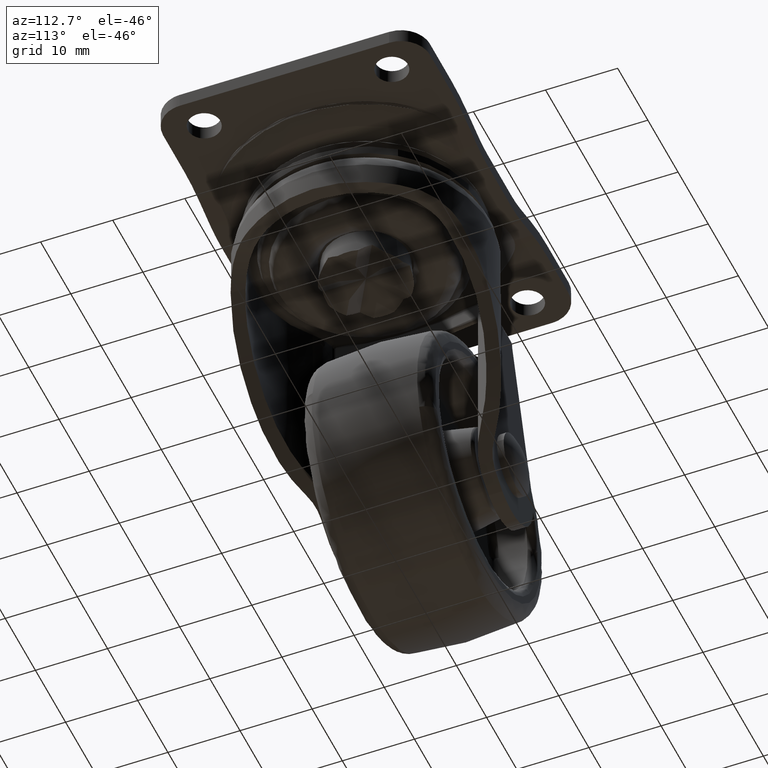
[diagram: clean part render]
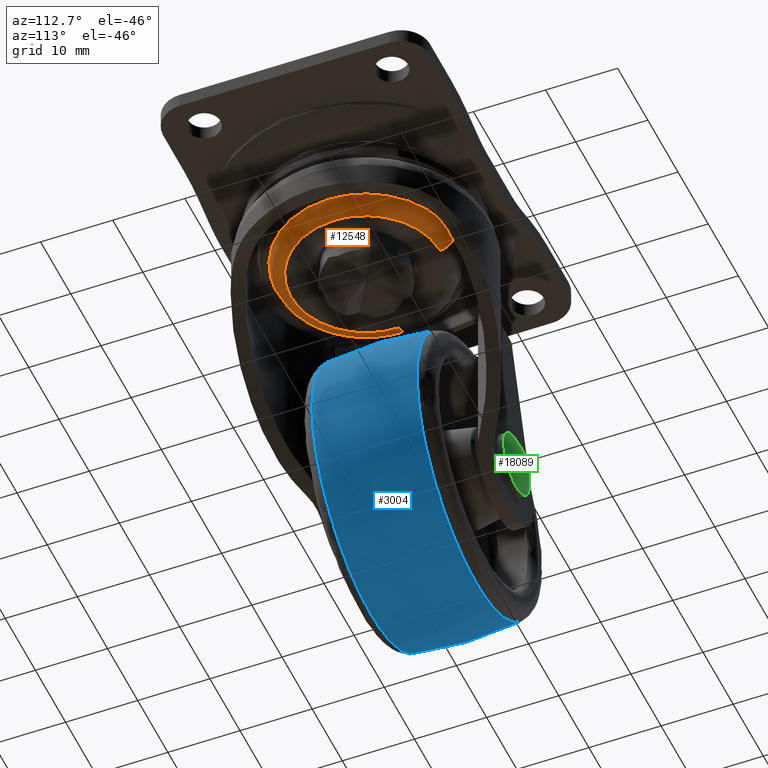
[diagram: same view with three faces highlighted in distinct colors, each labeled with its STEP entity id]
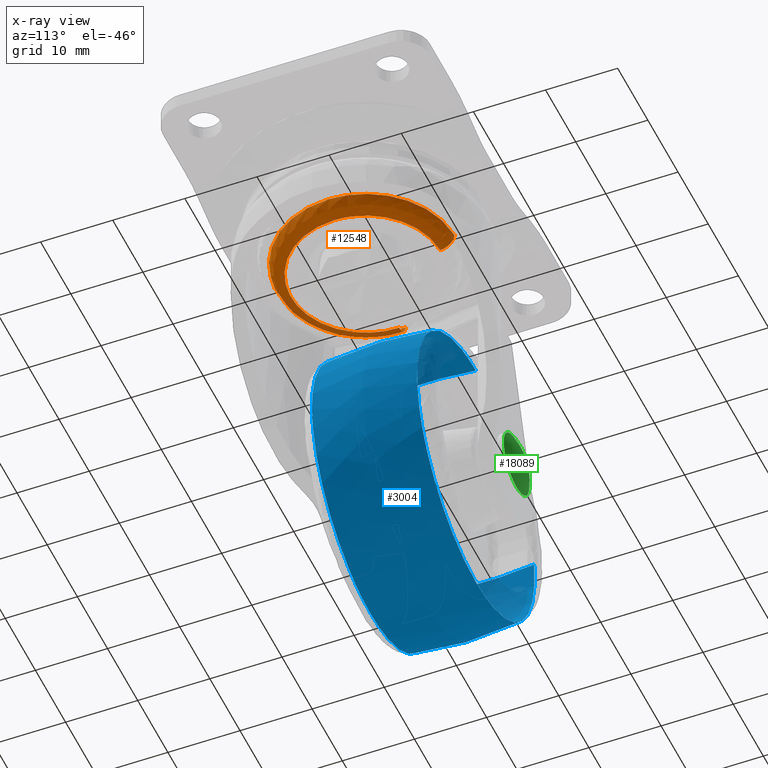
[diagram: x-ray of the same camera — body ghosted, the three highlighted faces saturated]
A machine part, auxiliary view with three faces highlighted in distinct colors.
The next image is the same camera in x-ray (body ghosted, the three faces saturated) — at least one of them is partly hidden behind the body in this view.
Their STEP definitions:

[orange] entity #12548 — the highlighted face is a freeform B-spline surface patch.
#12378=CARTESIAN_POINT('',(0.311850443646157,12.405522240732195,-10.944864675585006));
#12379=CARTESIAN_POINT('',(12.717372684378343,12.093671797086039,-10.944864675585006));
#12380=CARTESIAN_POINT('',(12.405522240732186,-0.311850443646149,-10.944864675585006));
#12381=CARTESIAN_POINT('',(12.093671797086026,-12.717372684378338,-10.944864675585006));
#12382=CARTESIAN_POINT('',(-0.311850443646158,-12.405522240732173,-10.944864675585006));
#12383=CARTESIAN_POINT('',(-12.717372684378343,-12.093671797086019,-10.944864675585006));
#12384=CARTESIAN_POINT('',(-12.405522240732186,0.311850443646164,-10.944864675585006));
#12385=CARTESIAN_POINT('',(0.313950627715456,12.489068314538290,-13.167879551239734));
#12386=CARTESIAN_POINT('',(12.803018942253740,12.175117686822833,-13.167879551239738));
#12387=CARTESIAN_POINT('',(12.489068314538283,-0.313950627715448,-13.167879551239734));
#12388=CARTESIAN_POINT('',(12.175117686822823,-12.803018942253731,-13.167879551239738));
#12389=CARTESIAN_POINT('',(-0.313950627715457,-12.489068314538274,-13.167879551239734));
#12390=CARTESIAN_POINT('',(-12.803018942253740,-12.175117686822817,-13.167879551239738));
#12391=CARTESIAN_POINT('',(-12.489068314538283,0.313950627715464,-13.167879551239734));
#12392=CARTESIAN_POINT('',(0.258178255972548,10.270423409033265,-13.015289510835558));
#12393=CARTESIAN_POINT('',(10.528601665005811,10.012245153060721,-13.015289510835558));
#12394=CARTESIAN_POINT('',(10.270423409033260,-0.258178255972541,-13.015289510835558));
#12395=CARTESIAN_POINT('',(10.012245153060713,-10.528601665005803,-13.015289510835558));
#12396=CARTESIAN_POINT('',(-0.258178255972549,-10.270423409033253,-13.015289510835558));
#12397=CARTESIAN_POINT('',(-10.528601665005811,-10.012245153060706,-13.015289510835558));
#12398=CARTESIAN_POINT('',(-10.270423409033260,0.258178255972556,-13.015289510835558));
#12406=(BOUNDED_SURFACE()B_SPLINE_SURFACE(2,2,((#12378,#12385,#12392),(#12379,#12386,#12393),(#12380,#12387,#12394),(#12381,#12388,#12395),(#12382,#12389,#12396),(#12383,#12390,#12397),(#12384,#12391,#12398)),.UNSPECIFIED.,.F.,.F.,.U.)B_SPLINE_SURFACE_WITH_KNOTS((3,2,2,3),(3,3),(0.0,20.560635510765820,41.121271021531633,61.681906532297447),(0.0,3.565430181881246),.UNSPECIFIED.)GEOMETRIC_REPRESENTATION_ITEM()RATIONAL_B_SPLINE_SURFACE(((0.913808013108991,0.610044476506142,0.911112179093814),(0.646159842771973,0.431366586162891,0.644253600258888),(0.913808013108991,0.610044476506142,0.911112179093814),(0.646159842771973,0.431366586162891,0.644253600258888),(0.913808013108991,0.610044476506142,0.911112179093814),(0.646159842771973,0.431366586162891,0.644253600258888),(0.913808013108991,0.610044476506142,0.911112179093814)))REPRESENTATION_ITEM('')SURFACE());
#12407=CARTESIAN_POINT('',(0.311861971514638,12.405980820569450,-11.081737371096560));
#12408=VERTEX_POINT('',#12407);
#12409=CARTESIAN_POINT('',(12.409900000000000,7.105427E-015,-11.081737370593000));
#12410=VERTEX_POINT('',#12409);
#12411=CARTESIAN_POINT('',(0.311861971514638,12.405980820569447,-11.081737371096558));
#12412=CARTESIAN_POINT('',(12.409900000000000,12.101859925472256,-11.081737370592998));
#12413=CARTESIAN_POINT('',(12.409900000000000,7.105427E-015,-11.081737370593000));
#12421=(BOUNDED_CURVE()B_SPLINE_CURVE(2,(#12411,#12412,#12413),.UNSPECIFIED.,.F.,.U.)B_SPLINE_CURVE_WITH_KNOTS((3,3),(0.754420108232245,1.0),.UNSPECIFIED.)CURVE()GEOMETRIC_REPRESENTATION_ITEM()RATIONAL_B_SPLINE_CURVE((0.989826157676937,0.712285260097132,1.0))REPRESENTATION_ITEM(''));
#12422=EDGE_CURVE('',#12408,#12410,#12421,.T.);
#12423=ORIENTED_EDGE('',*,*,#12422,.T.);
#12424=CARTESIAN_POINT('',(-4.384442078075715,-11.609577330963591,-11.081737370593000));
#12425=VERTEX_POINT('',#12424);
#12426=CARTESIAN_POINT('',(12.409900000000000,7.105427E-015,-11.081737370593000));
#12427=CARTESIAN_POINT('',(12.409900000000002,-12.409899999999993,-11.081737370592998));
#12428=CARTESIAN_POINT('',(0.0,-12.409899999999990,-11.081737370593000));
#12429=CARTESIAN_POINT('',(-2.265265267244879,-12.409899999999999,-11.081737370592995));
#12430=CARTESIAN_POINT('',(-4.384442078075714,-11.609577330963591,-11.081737370593002));
#12438=(BOUNDED_CURVE()B_SPLINE_CURVE(2,(#12426,#12427,#12428,#12429,#12430),.UNSPECIFIED.,.F.,.U.)B_SPLINE_CURVE_WITH_KNOTS((3,2,3),(0.0,0.250000000000000,0.310000000004770),.UNSPECIFIED.)CURVE()GEOMETRIC_REPRESENTATION_ITEM()RATIONAL_B_SPLINE_CURVE((1.0,0.707106781186548,1.0,0.929705627479183,0.893152553771041))REPRESENTATION_ITEM(''));
#12439=EDGE_CURVE('',#12410,#12425,#12438,.T.);
#12440=ORIENTED_EDGE('',*,*,#12439,.T.);
#12441=CARTESIAN_POINT('',(-12.409900000197080,7.208076E-015,-11.081737370593000));
#12442=VERTEX_POINT('',#12441);
#12443=CARTESIAN_POINT('',(-4.384442078075714,-11.609577330963591,-11.081737370593002));
#12444=CARTESIAN_POINT('',(-12.409900000000000,-8.578704244715675,-11.081737370592998));
#12445=CARTESIAN_POINT('',(-12.409900000197080,7.208076E-015,-11.081737370593000));
#12453=(BOUNDED_CURVE()B_SPLINE_CURVE(2,(#12443,#12444,#12445),.UNSPECIFIED.,.F.,.U.)B_SPLINE_CURVE_WITH_KNOTS((3,3),(0.310000000004770,0.500000000000000),.UNSPECIFIED.)CURVE()GEOMETRIC_REPRESENTATION_ITEM()RATIONAL_B_SPLINE_CURVE((0.893152553771041,0.777401153707365,1.0))REPRESENTATION_ITEM(''));
#12454=EDGE_CURVE('',#12425,#12442,#12453,.T.);
#12455=ORIENTED_EDGE('',*,*,#12454,.T.);
#12456=CARTESIAN_POINT('',(-12.405980820569170,0.311861971538966,-11.081737371085630));
#12457=VERTEX_POINT('',#12456);
#12458=CARTESIAN_POINT('',(-12.409900000197080,7.208076E-015,-11.081737370593000));
#12459=CARTESIAN_POINT('',(-12.409899999999997,0.155955612045021,-11.081737370593002));
#12460=CARTESIAN_POINT('',(-12.405980820569170,0.311861971538966,-11.081737371085627));
#12468=(BOUNDED_CURVE()B_SPLINE_CURVE(2,(#12458,#12459,#12460),.UNSPECIFIED.,.F.,.U.)B_SPLINE_CURVE_WITH_KNOTS((3,3),(0.500000000000000,0.504420108232930),.UNSPECIFIED.)CURVE()GEOMETRIC_REPRESENTATION_ITEM()RATIONAL_B_SPLINE_CURVE((1.0,0.994821521088613,0.989826157675389))REPRESENTATION_ITEM(''));
#12469=EDGE_CURVE('',#12442,#12457,#12468,.T.);
#12470=ORIENTED_EDGE('',*,*,#12469,.T.);
#12471=CARTESIAN_POINT('',(-10.407565247732730,0.261625732591921,-13.020000000000000));
#12472=VERTEX_POINT('',#12471);
#12473=CARTESIAN_POINT('',(-12.405980820569168,0.311861971538966,-11.081737371085625));
#12474=CARTESIAN_POINT('',(-12.346139578772986,0.310357680252773,-13.019999992456505));
#12475=CARTESIAN_POINT('',(-10.407565247732734,0.261625732591920,-13.020000000000005));
#12483=(BOUNDED_CURVE()B_SPLINE_CURVE(2,(#12473,#12474,#12475),.UNSPECIFIED.,.F.,.U.)B_SPLINE_CURVE_WITH_KNOTS((3,3),(-1.727085524206402,-0.280008953892666),.UNSPECIFIED.)CURVE()GEOMETRIC_REPRESENTATION_ITEM()RATIONAL_B_SPLINE_CURVE((0.887465651324974,0.636264459386005,0.885014576045190))REPRESENTATION_ITEM(''));
#12484=EDGE_CURVE('',#12457,#12472,#12483,.T.);
#12485=ORIENTED_EDGE('',*,*,#12484,.T.);
#12486=CARTESIAN_POINT('',(-10.410853102833180,7.105427E-015,-13.020000000000000));
#12487=VERTEX_POINT('',#12486);
#12488=CARTESIAN_POINT('',(-10.410853102833180,7.105427E-015,-13.020000000000000));
#12489=CARTESIAN_POINT('',(-10.410853102833176,0.130833525748690,-13.019999999999998));
#12490=CARTESIAN_POINT('',(-10.407565247732734,0.261625732591921,-13.020000000000003));
#12498=(BOUNDED_CURVE()B_SPLINE_CURVE(2,(#12488,#12489,#12490),.UNSPECIFIED.,.F.,.U.)B_SPLINE_CURVE_WITH_KNOTS((3,3),(0.500000000000000,0.504420108242749),.UNSPECIFIED.)CURVE()GEOMETRIC_REPRESENTATION_ITEM()RATIONAL_B_SPLINE_CURVE((1.0,0.994821521077110,0.989826157653196))REPRESENTATION_ITEM(''));
#12499=EDGE_CURVE('',#12487,#12472,#12498,.T.);
#12500=ORIENTED_EDGE('',*,*,#12499,.F.);
#12501=CARTESIAN_POINT('',(10.410853102833180,7.105427E-015,-13.020000000000000));
#12502=VERTEX_POINT('',#12501);
#12503=CARTESIAN_POINT('',(10.410853102833180,7.105427E-015,-13.020000000000000));
#12504=CARTESIAN_POINT('',(10.410853102833181,-10.410853102833174,-13.020000000000001));
#12505=CARTESIAN_POINT('',(0.0,-10.410853102833171,-13.020000000000000));
#12506=CARTESIAN_POINT('',(-10.410853102833181,-10.410853102833174,-13.020000000000001));
#12507=CARTESIAN_POINT('',(-10.410853102833180,7.105427E-015,-13.020000000000000));
#12515=(BOUNDED_CURVE()B_SPLINE_CURVE(2,(#12503,#12504,#12505,#12506,#12507),.UNSPECIFIED.,.F.,.U.)B_SPLINE_CURVE_WITH_KNOTS((3,2,3),(0.0,0.250000000000000,0.500000000000000),.UNSPECIFIED.)CURVE()GEOMETRIC_REPRESENTATION_ITEM()RATIONAL_B_SPLINE_CURVE((1.0,0.707106781186548,1.0,0.707106781186548,1.0))REPRESENTATION_ITEM(''));
#12516=EDGE_CURVE('',#12502,#12487,#12515,.T.);
#12517=ORIENTED_EDGE('',*,*,#12516,.F.);
#12518=CARTESIAN_POINT('',(0.261625732851050,10.407565249425391,-13.020000000000000));
#12519=VERTEX_POINT('',#12518);
#12520=CARTESIAN_POINT('',(0.261625732851049,10.407565249425389,-13.020000000000000));
#12521=CARTESIAN_POINT('',(10.410853102833181,10.152433616898458,-13.020000000000001));
#12522=CARTESIAN_POINT('',(10.410853102833180,7.105427E-015,-13.020000000000000));
#12530=(BOUNDED_CURVE()B_SPLINE_CURVE(2,(#12520,#12521,#12522),.UNSPECIFIED.,.F.,.U.)B_SPLINE_CURVE_WITH_KNOTS((3,3),(0.754420108250026,1.0),.UNSPECIFIED.)CURVE()GEOMETRIC_REPRESENTATION_ITEM()RATIONAL_B_SPLINE_CURVE((0.989826157636747,0.712285260117964,1.0))REPRESENTATION_ITEM(''));
#12531=EDGE_CURVE('',#12519,#12502,#12530,.T.);
#12532=ORIENTED_EDGE('',*,*,#12531,.F.);
#12533=CARTESIAN_POINT('',(0.311861971514638,12.405980820569452,-11.081737371096558));
#12534=CARTESIAN_POINT('',(0.310357680254789,12.346139578853474,-13.019999989162541));
#12535=CARTESIAN_POINT('',(0.261625732851049,10.407565249425391,-13.020000000000007));
#12543=(BOUNDED_CURVE()B_SPLINE_CURVE(2,(#12533,#12534,#12535),.UNSPECIFIED.,.F.,.U.)B_SPLINE_CURVE_WITH_KNOTS((3,3),(-1.727085524195016,-0.280008955655793),.UNSPECIFIED.)CURVE()GEOMETRIC_REPRESENTATION_ITEM()RATIONAL_B_SPLINE_CURVE((0.887465651321021,0.636264459694027,0.885014575439033))REPRESENTATION_ITEM(''));
#12544=EDGE_CURVE('',#12408,#12519,#12543,.T.);
#12545=ORIENTED_EDGE('',*,*,#12544,.F.);
#12546=EDGE_LOOP('',(#12423,#12440,#12455,#12470,#12485,#12500,#12517,#12532,#12545));
#12547=FACE_OUTER_BOUND('',#12546,.T.);
#12548=ADVANCED_FACE('',(#12547),#12406,.T.);

[blue] entity #3004 — the highlighted face is a freeform B-spline surface patch.
#1916=CARTESIAN_POINT('',(-19.0,7.291651991214275,-15.534724209274620));
#1917=VERTEX_POINT('',#1916);
#1931=CARTESIAN_POINT('',(-0.221796312252091,7.291661334391593,-40.126895138485132));
#1932=VERTEX_POINT('',#1931);
#1933=CARTESIAN_POINT('',(-0.221796312252091,7.291661334391593,-40.126895138485132));
#1934=CARTESIAN_POINT('',(0.465458627432351,7.291660312590998,-37.609604089531537));
#1935=CARTESIAN_POINT('',(0.465458627432351,7.291659328940423,-35.000183918353542));
#1936=CARTESIAN_POINT('',(0.465458627432351,7.291651991214275,-15.534724209274618));
#1937=CARTESIAN_POINT('',(-19.0,7.291651991214275,-15.534724209274620));
#1945=(BOUNDED_CURVE()B_SPLINE_CURVE(2,(#1933,#1934,#1935,#1936,#1937),.UNSPECIFIED.,.F.,.U.)B_SPLINE_CURVE_WITH_KNOTS((3,2,3),(0.205098066871547,0.250000000000000,0.500000000000000),.UNSPECIFIED.)CURVE()GEOMETRIC_REPRESENTATION_ITEM()RATIONAL_B_SPLINE_CURVE((0.913685074326374,0.947394113100244,1.0,0.707106781186548,1.0))REPRESENTATION_ITEM(''));
#1946=EDGE_CURVE('',#1932,#1917,#1945,.T.);
#2003=CARTESIAN_POINT('',(-19.0,7.291666666666570,-54.465643627432449));
#2004=VERTEX_POINT('',#2003);
#2005=CARTESIAN_POINT('',(-19.0,7.291666666666570,-54.465643627432449));
#2006=CARTESIAN_POINT('',(-4.136474489230366,7.291666666666570,-54.465643627432449));
#2007=CARTESIAN_POINT('',(-0.221796312252091,7.291661334391593,-40.126895138485132));
#2015=(BOUNDED_CURVE()B_SPLINE_CURVE(2,(#2005,#2006,#2007),.UNSPECIFIED.,.F.,.U.)B_SPLINE_CURVE_WITH_KNOTS((3,3),(0.0,0.205098066871547),.UNSPECIFIED.)CURVE()GEOMETRIC_REPRESENTATION_ITEM()RATIONAL_B_SPLINE_CURVE((1.0,0.759712668086304,0.913685074326374))REPRESENTATION_ITEM(''));
#2016=EDGE_CURVE('',#2004,#1932,#2015,.T.);
#2018=CARTESIAN_POINT('',(-38.335269852961197,7.291660169359547,-32.752640434118462));
#2019=VERTEX_POINT('',#2018);
#2020=CARTESIAN_POINT('',(-38.335269852961204,7.291660169359547,-32.752640434118462));
#2021=CARTESIAN_POINT('',(-38.465459554242692,7.291660336931813,-33.872642024027357));
#2022=CARTESIAN_POINT('',(-38.465459526689173,7.291660525111098,-35.000184895469900));
#2023=CARTESIAN_POINT('',(-38.465459051015891,7.291663773764609,-54.465643578194822));
#2024=CARTESIAN_POINT('',(-19.0,7.291666666666570,-54.465643627432449));
#2032=(BOUNDED_CURVE()B_SPLINE_CURVE(2,(#2020,#2021,#2022,#2023,#2024),.UNSPECIFIED.,.F.,.U.)B_SPLINE_CURVE_WITH_KNOTS((3,2,3),(0.730000172552690,0.750000000000000,1.0),.UNSPECIFIED.)CURVE()GEOMETRIC_REPRESENTATION_ITEM()RATIONAL_B_SPLINE_CURVE((0.956886457816466,0.976568744652975,1.0,0.707106781186548,1.0))REPRESENTATION_ITEM(''));
#2033=EDGE_CURVE('',#2019,#2004,#2032,.T.);
#2084=CARTESIAN_POINT('',(-11.878962424429821,-7.291666457953332,-53.116335348257962));
#2085=VERTEX_POINT('',#2084);
#2086=CARTESIAN_POINT('',(0.279789315277866,-7.291662504441980,-32.318055479335477));
#2087=VERTEX_POINT('',#2086);
#2088=CARTESIAN_POINT('',(-11.878962424429824,-7.291666457953331,-53.116335348257962));
#2089=CARTESIAN_POINT('',(0.465458627432400,-7.291665687121944,-48.264030253573154));
#2090=CARTESIAN_POINT('',(0.465458627432400,-7.291663592097937,-35.000184546781000));
#2091=CARTESIAN_POINT('',(0.465458627432400,-7.291663379261780,-33.652693570815046));
#2092=CARTESIAN_POINT('',(0.279789315277866,-7.291662504441980,-32.318055479335484));
#2100=(BOUNDED_CURVE()B_SPLINE_CURVE(2,(#2088,#2089,#2090,#2091,#2092),.UNSPECIFIED.,.F.,.U.)B_SPLINE_CURVE_WITH_KNOTS((3,2,3),(0.062116703510050,0.250000000000000,0.273792415459660),.UNSPECIFIED.)CURVE()GEOMETRIC_REPRESENTATION_ITEM()RATIONAL_B_SPLINE_CURVE((0.890615479700032,0.779881026119106,1.0,0.972125451410692,0.949556525547683))REPRESENTATION_ITEM(''));
#2101=EDGE_CURVE('',#2085,#2087,#2100,.T.);
#2186=CARTESIAN_POINT('',(-19.0,-7.291666666666580,-54.465643627432513));
#2187=VERTEX_POINT('',#2186);
#2188=CARTESIAN_POINT('',(-19.0,-7.291666666666580,-54.465643627432513));
#2189=CARTESIAN_POINT('',(-15.311646417906722,-7.291666666666580,-54.465643627432506));
#2190=CARTESIAN_POINT('',(-11.878962424429826,-7.291666457953332,-53.116335348257962));
#2198=(BOUNDED_CURVE()B_SPLINE_CURVE(2,(#2188,#2189,#2190),.UNSPECIFIED.,.F.,.U.)B_SPLINE_CURVE_WITH_KNOTS((3,3),(0.0,0.062116703510050),.UNSPECIFIED.)CURVE()GEOMETRIC_REPRESENTATION_ITEM()RATIONAL_B_SPLINE_CURVE((1.0,0.927225755067442,0.890615479700032))REPRESENTATION_ITEM(''));
#2199=EDGE_CURVE('',#2187,#2085,#2198,.T.);
#2248=CARTESIAN_POINT('',(-19.0,-7.291660517529294,-15.534725466129490));
#2249=VERTEX_POINT('',#2248);
#2250=CARTESIAN_POINT('',(0.279789315277866,-7.291662504441980,-32.318055479335484));
#2251=CARTESIAN_POINT('',(-2.055042288790572,-7.291660517529294,-15.534725466129496));
#2252=CARTESIAN_POINT('',(-19.0,-7.291660517529294,-15.534725466129490));
#2260=(BOUNDED_CURVE()B_SPLINE_CURVE(2,(#2250,#2251,#2252),.UNSPECIFIED.,.F.,.U.)B_SPLINE_CURVE_WITH_KNOTS((3,3),(0.273792415459660,0.500000000000000),.UNSPECIFIED.)CURVE()GEOMETRIC_REPRESENTATION_ITEM()RATIONAL_B_SPLINE_CURVE((0.949556525547683,0.734981329775855,1.0))REPRESENTATION_ITEM(''));
#2261=EDGE_CURVE('',#2087,#2249,#2260,.T.);
#2263=CARTESIAN_POINT('',(-38.335269497390577,-7.291662573129937,-32.752640444034640));
#2264=VERTEX_POINT('',#2263);
#2278=CARTESIAN_POINT('',(-38.335269497390584,-7.291662573129937,-32.752640444034640));
#2279=CARTESIAN_POINT('',(-38.465459211352766,-7.291662678706479,-33.872642048230013));
#2280=CARTESIAN_POINT('',(-38.465459193993162,-7.291662797266185,-35.000184934142702));
#2281=CARTESIAN_POINT('',(-38.465458894303673,-7.291664844034506,-54.465643596411219));
#2282=CARTESIAN_POINT('',(-19.0,-7.291666666666580,-54.465643627432513));
#2290=(BOUNDED_CURVE()B_SPLINE_CURVE(2,(#2278,#2279,#2280,#2281,#2282),.UNSPECIFIED.,.F.,.U.)B_SPLINE_CURVE_WITH_KNOTS((3,2,3),(0.730000172281514,0.750000000000000,1.0),.UNSPECIFIED.)CURVE()GEOMETRIC_REPRESENTATION_ITEM()RATIONAL_B_SPLINE_CURVE((0.956886457282724,0.976568744335273,1.0,0.707106781186548,1.0))REPRESENTATION_ITEM(''));
#2291=EDGE_CURVE('',#2264,#2187,#2290,.T.);
#2912=CARTESIAN_POINT('',(-38.222390168867321,-8.024815037819989,-32.765742250429952));
#2913=CARTESIAN_POINT('',(-38.866232832661680,-4.038584733023725,-32.690900903472517));
#2914=CARTESIAN_POINT('',(-38.866232832661694,9.184887E-016,-32.690900903472517));
#2915=CARTESIAN_POINT('',(-38.866232832661701,4.038583348912152,-32.690900903472524));
#2916=CARTESIAN_POINT('',(-38.222390607324719,8.024812323193249,-32.765742199462927));
#2917=CARTESIAN_POINT('',(-38.351822090058420,-8.024815037819986,-33.879214900342468));
#2918=CARTESIAN_POINT('',(-38.999999999999993,-4.038584733023726,-33.841668665526875));
#2919=CARTESIAN_POINT('',(-39.0,9.184887E-016,-33.841668665526861));
#2920=CARTESIAN_POINT('',(-39.000000000000007,4.038583348912152,-33.841668665526875));
#2921=CARTESIAN_POINT('',(-38.351822531468137,8.024812323193247,-33.879214874773446));
#2922=CARTESIAN_POINT('',(-38.351822090058427,-8.024815037819989,-35.000185000000108));
#2923=CARTESIAN_POINT('',(-39.000000000000007,-4.038584733023726,-35.000185000000101));
#2924=CARTESIAN_POINT('',(-39.000000000000007,9.184887E-016,-35.000185000000101));
#2925=CARTESIAN_POINT('',(-39.000000000000007,4.038583348912152,-35.000185000000108));
#2926=CARTESIAN_POINT('',(-38.351822531468144,8.024812323193245,-35.000185000000101));
#2927=CARTESIAN_POINT('',(-38.351822090058441,-8.024815037819987,-54.352007090058535));
#2928=CARTESIAN_POINT('',(-39.000000000000014,-4.038584733023726,-55.000185000000116));
#2929=CARTESIAN_POINT('',(-39.000000000000007,9.184887E-016,-55.000185000000101));
#2930=CARTESIAN_POINT('',(-39.0,4.038583348912152,-55.000185000000123));
#2931=CARTESIAN_POINT('',(-38.351822531468137,8.024812323193245,-54.352007531468246));
#2932=CARTESIAN_POINT('',(-19.0,-8.024815037819989,-54.352007090058535));
#2933=CARTESIAN_POINT('',(-19.000000000000004,-4.038584733023726,-55.000185000000101));
#2934=CARTESIAN_POINT('',(-19.0,9.184887E-016,-55.000185000000101));
#2935=CARTESIAN_POINT('',(-18.999999999999996,4.038583348912152,-55.000185000000108));
#2936=CARTESIAN_POINT('',(-18.999999999999996,8.024812323193245,-54.352007531468232));
#2937=CARTESIAN_POINT('',(0.351822090058424,-8.024815037819987,-54.352007090058535));
#2938=CARTESIAN_POINT('',(1.000000000000004,-4.038584733023726,-55.000185000000116));
#2939=CARTESIAN_POINT('',(1.000000000000004,9.184887E-016,-55.000185000000101));
#2940=CARTESIAN_POINT('',(1.000000000000004,4.038583348912152,-55.000185000000123));
#2941=CARTESIAN_POINT('',(0.351822531468138,8.024812323193245,-54.352007531468246));
#2942=CARTESIAN_POINT('',(0.351822090058424,-8.024815037819989,-35.000185000000108));
#2943=CARTESIAN_POINT('',(1.000000000000004,-4.038584733023726,-35.000185000000101));
#2944=CARTESIAN_POINT('',(1.000000000000004,9.184887E-016,-35.000185000000101));
#2945=CARTESIAN_POINT('',(1.000000000000005,4.038583348912152,-35.000185000000108));
#2946=CARTESIAN_POINT('',(0.351822531468139,8.024812323193245,-35.000185000000101));
#2947=CARTESIAN_POINT('',(0.351822090058424,-8.024815037819987,-15.648362909941676));
#2948=CARTESIAN_POINT('',(1.000000000000004,-4.038584733023726,-15.000185000000105));
#2949=CARTESIAN_POINT('',(1.000000000000004,9.184887E-016,-15.000185000000094));
#2950=CARTESIAN_POINT('',(1.000000000000004,4.038583348912152,-15.000185000000105));
#2951=CARTESIAN_POINT('',(0.351822531468138,8.024812323193245,-15.648362468531964));
#2952=CARTESIAN_POINT('',(-19.0,-8.024815037819989,-15.648362909941682));
#2953=CARTESIAN_POINT('',(-19.000000000000004,-4.038584733023726,-15.000185000000094));
#2954=CARTESIAN_POINT('',(-19.0,9.184887E-016,-15.000185000000100));
#2955=CARTESIAN_POINT('',(-18.999999999999996,4.038583348912152,-15.000185000000092));
#2956=CARTESIAN_POINT('',(-18.999999999999996,8.024812323193245,-15.648362468531966));
#2964=(BOUNDED_SURFACE()B_SPLINE_SURFACE(2,2,((#2912,#2917,#2922,#2927,#2932,#2937,#2942,#2947,#2952),(#2913,#2918,#2923,#2928,#2933,#2938,#2943,#2948,#2953),(#2914,#2919,#2924,#2929,#2934,#2939,#2944,#2949,#2954),(#2915,#2920,#2925,#2930,#2935,#2940,#2945,#2950,#2955),(#2916,#2921,#2926,#2931,#2936,#2941,#2946,#2951,#2956)),.UNSPECIFIED.,.F.,.F.,.U.)B_SPLINE_SURFACE_WITH_KNOTS((3,2,3),(3,2,2,2,3),(0.0,8.177829086079941,16.355655421879732),(0.0,2.650966246153039,35.788051236000662,68.925136225848263,102.062221215695900),.UNSPECIFIED.)GEOMETRIC_REPRESENTATION_ITEM()RATIONAL_B_SPLINE_SURFACE(((0.927424201107810,0.946500612657576,0.969210625504883,0.685335405692558,0.969210625504883,0.685335405692558,0.969210625504883,0.685335405692558,0.969210625504883),(0.938981983581591,0.958296129940099,0.981289160405614,0.693876219627663,0.981289160405614,0.693876219627663,0.981289160405614,0.693876219627663,0.981289160405614),(0.956886126402807,0.976568547383107,1.0,0.707106781186548,1.0,0.707106781186548,1.0,0.707106781186548,1.0),(0.938981989602921,0.958296136085283,0.981289166698243,0.693876224077224,0.981289166698243,0.693876224077224,0.981289166698243,0.693876224077224,0.981289166698243),(0.927424208881790,0.946500620591462,0.969210633629132,0.685335411437270,0.969210633629132,0.685335411437270,0.969210633629132,0.685335411437270,0.969210633629132)))REPRESENTATION_ITEM('')SURFACE());
#2965=ORIENTED_EDGE('',*,*,#2033,.T.);
#2966=ORIENTED_EDGE('',*,*,#2016,.T.);
#2967=ORIENTED_EDGE('',*,*,#1946,.T.);
#2968=CARTESIAN_POINT('',(-19.0,-7.291660517529294,-15.534725466129492));
#2969=CARTESIAN_POINT('',(-19.0,-3.665423430254386,-15.000185000000092));
#2970=CARTESIAN_POINT('',(-19.0,9.184887E-016,-15.000185000000100));
#2971=CARTESIAN_POINT('',(-19.0,3.665419097869569,-15.000185000000091));
#2972=CARTESIAN_POINT('',(-19.0,7.291651991214275,-15.534724209274618));
#2980=(BOUNDED_CURVE()B_SPLINE_CURVE(2,(#2968,#2969,#2970,#2971,#2972),.UNSPECIFIED.,.F.,.U.)B_SPLINE_CURVE_WITH_KNOTS((3,2,3),(0.419432916807738,0.500000000000000,0.580566989585114),.UNSPECIFIED.)CURVE()GEOMETRIC_REPRESENTATION_ITEM()RATIONAL_B_SPLINE_CURVE((0.971459458046156,0.982988613428899,1.0,0.982988633193638,0.971459484836543))REPRESENTATION_ITEM(''));
#2981=EDGE_CURVE('',#2249,#1917,#2980,.T.);
#2982=ORIENTED_EDGE('',*,*,#2981,.F.);
#2983=ORIENTED_EDGE('',*,*,#2261,.F.);
#2984=ORIENTED_EDGE('',*,*,#2101,.F.);
#2985=ORIENTED_EDGE('',*,*,#2199,.F.);
#2986=ORIENTED_EDGE('',*,*,#2291,.F.);
#2987=CARTESIAN_POINT('',(-38.335269497390584,-7.291662573129937,-32.752640444034640));
#2988=CARTESIAN_POINT('',(-38.866235065681344,-3.665424474744637,-32.690920113789282));
#2989=CARTESIAN_POINT('',(-38.866235066586889,-2.395100E-014,-32.690920121580213));
#2990=CARTESIAN_POINT('',(-38.866235067492447,3.665423253342549,-32.690920129371150));
#2991=CARTESIAN_POINT('',(-38.335269852961204,7.291660169359547,-32.752640434118462));
#2999=(BOUNDED_CURVE()B_SPLINE_CURVE(2,(#2987,#2988,#2989,#2990,#2991),.UNSPECIFIED.,.F.,.U.)B_SPLINE_CURVE_WITH_KNOTS((3,2,3),(0.419432894240055,0.500000000000000,0.580567079369870),.UNSPECIFIED.)CURVE()GEOMETRIC_REPRESENTATION_ITEM()RATIONAL_B_SPLINE_CURVE((0.929576063608982,0.940608153969971,0.956886118190660,0.940608159301883,0.929576070836192))REPRESENTATION_ITEM(''));
#3000=EDGE_CURVE('',#2264,#2019,#2999,.T.);
#3001=ORIENTED_EDGE('',*,*,#3000,.T.);
#3002=EDGE_LOOP('',(#2965,#2966,#2967,#2982,#2983,#2984,#2985,#2986,#3001));
#3003=FACE_OUTER_BOUND('',#3002,.T.);
#3004=ADVANCED_FACE('',(#3003),#2964,.T.);

[green] entity #18089 — the highlighted face is a freeform B-spline surface patch.
#17523=CARTESIAN_POINT('',(-14.779709138836660,12.933474000000230,-34.498542650142028));
#17524=VERTEX_POINT('',#17523);
#17525=CARTESIAN_POINT('',(-19.0,12.933474000000020,-39.250185000000101));
#17526=VERTEX_POINT('',#17525);
#17527=CARTESIAN_POINT('',(-14.779709138836655,12.933474000000231,-34.498542650142028));
#17528=CARTESIAN_POINT('',(-14.749999999999996,12.933474000000022,-34.748484081833020));
#17529=CARTESIAN_POINT('',(-14.750000000000000,12.933474000000020,-35.000185000000101));
#17530=CARTESIAN_POINT('',(-14.750000000000005,12.933474000000022,-39.250185000000094));
#17531=CARTESIAN_POINT('',(-19.0,12.933474000000020,-39.250185000000101));
#17539=(BOUNDED_CURVE()B_SPLINE_CURVE(2,(#17527,#17528,#17529,#17530,#17531),.UNSPECIFIED.,.F.,.U.)B_SPLINE_CURVE_WITH_KNOTS((3,2,3),(0.229562599555891,0.250000000000000,0.500000000000000),.UNSPECIFIED.)CURVE()GEOMETRIC_REPRESENTATION_ITEM()RATIONAL_B_SPLINE_CURVE((0.956027001232076,0.976056095998981,1.0,0.707106781186548,1.0))REPRESENTATION_ITEM(''));
#17540=EDGE_CURVE('',#17524,#17526,#17539,.T.);
#17581=CARTESIAN_POINT('',(-23.242072893290700,12.933474000000020,-35.259641293059772));
#17582=VERTEX_POINT('',#17581);
#17588=CARTESIAN_POINT('',(-19.0,12.933474000000020,-39.250185000000101));
#17589=CARTESIAN_POINT('',(-22.998000784280212,12.933474000000023,-39.250185000000101));
#17590=CARTESIAN_POINT('',(-23.242072893290697,12.933474000000023,-35.259641293059772));
#17598=(BOUNDED_CURVE()B_SPLINE_CURVE(2,(#17588,#17589,#17590),.UNSPECIFIED.,.F.,.U.)B_SPLINE_CURVE_WITH_KNOTS((3,3),(0.500000000000000,0.739332962238996),.UNSPECIFIED.)CURVE()GEOMETRIC_REPRESENTATION_ITEM()RATIONAL_B_SPLINE_CURVE((1.0,0.719603993286648,0.976072041666832))REPRESENTATION_ITEM(''));
#17599=EDGE_CURVE('',#17526,#17582,#17598,.T.);
#17622=CARTESIAN_POINT('',(-19.0,12.933474000000020,-30.750185000000101));
#17623=VERTEX_POINT('',#17622);
#17624=CARTESIAN_POINT('',(-19.0,12.933474000000020,-30.750185000000101));
#17625=CARTESIAN_POINT('',(-15.225255429739070,12.933474000000022,-30.750185000000108));
#17626=CARTESIAN_POINT('',(-14.779709138836653,12.933474000000231,-34.498542650142028));
#17634=(BOUNDED_CURVE()B_SPLINE_CURVE(2,(#17624,#17625,#17626),.UNSPECIFIED.,.F.,.U.)B_SPLINE_CURVE_WITH_KNOTS((3,3),(0.0,0.229562599555891),.UNSPECIFIED.)CURVE()GEOMETRIC_REPRESENTATION_ITEM()RATIONAL_B_SPLINE_CURVE((1.0,0.731050685187566,0.956027001232076))REPRESENTATION_ITEM(''));
#17635=EDGE_CURVE('',#17623,#17524,#17634,.T.);
#17637=CARTESIAN_POINT('',(-23.242072893290704,12.933474000000023,-35.259641293059772));
#17638=CARTESIAN_POINT('',(-23.250000000000000,12.933474000000023,-35.130034244055736));
#17639=CARTESIAN_POINT('',(-23.250000000000000,12.933474000000020,-35.000185000000101));
#17640=CARTESIAN_POINT('',(-23.250000000000000,12.933474000000022,-30.750185000000101));
#17641=CARTESIAN_POINT('',(-19.0,12.933474000000020,-30.750185000000101));
#17649=(BOUNDED_CURVE()B_SPLINE_CURVE(2,(#17637,#17638,#17639,#17640,#17641),.UNSPECIFIED.,.F.,.U.)B_SPLINE_CURVE_WITH_KNOTS((3,2,3),(0.739332962238997,0.750000000000000,1.0),.UNSPECIFIED.)CURVE()GEOMETRIC_REPRESENTATION_ITEM()RATIONAL_B_SPLINE_CURVE((0.976072041666833,0.987502787899901,1.0,0.707106781186548,1.0))REPRESENTATION_ITEM(''));
#17650=EDGE_CURVE('',#17582,#17623,#17649,.T.);
#18059=CARTESIAN_POINT('',(-23.311764699500646,11.619564907780269,-30.688324918159438));
#18060=CARTESIAN_POINT('',(-21.308536948104670,12.725550254483666,-30.383008967579013));
#18061=CARTESIAN_POINT('',(-16.691450056660212,12.725550254483666,-30.383008967579013));
#18062=CARTESIAN_POINT('',(-14.688214238705749,11.619553279491543,-30.688328128239942));
#18063=CARTESIAN_POINT('',(-23.617088360619871,12.725602651942589,-32.691589751424289));
#18064=CARTESIAN_POINT('',(-21.484465801078269,14.000158000000001,-32.515664239020637));
#18065=CARTESIAN_POINT('',(-16.515520213346480,14.000158000000001,-32.515664239020637));
#18066=CARTESIAN_POINT('',(-14.382889329567362,12.725589318507524,-32.691591591824093));
#18067=CARTESIAN_POINT('',(-23.617088360619871,12.725602651942589,-37.308779484147891));
#18068=CARTESIAN_POINT('',(-21.484465801078269,14.000158000000001,-37.484704938298670));
#18069=CARTESIAN_POINT('',(-16.515520213346480,14.000158000000001,-37.484704938298670));
#18070=CARTESIAN_POINT('',(-14.382889329567362,12.725589318507524,-37.308777643748726));
#18071=CARTESIAN_POINT('',(-23.311764888328479,11.619565591810868,-39.312043842918548));
#18072=CARTESIAN_POINT('',(-21.308537056362578,12.725551038814137,-39.617359720090526));
#18073=CARTESIAN_POINT('',(-16.691449948401708,12.725551038814137,-39.617359720090526));
#18074=CARTESIAN_POINT('',(-14.688214049877123,11.619553963521144,-39.312040632838823));
#18082=(BOUNDED_SURFACE()B_SPLINE_SURFACE(2,2,((#18059,#18063,#18067,#18071),(#18060,#18064,#18068,#18072),(#18061,#18065,#18069,#18073),(#18062,#18066,#18070,#18074)),.UNSPECIFIED.,.F.,.F.,.U.)B_SPLINE_SURFACE_WITH_KNOTS((3,1,3),(3,1,3),(0.0,4.786549163312021,9.573125271105827),(0.0,4.786655048556637,9.573308512143756),.UNSPECIFIED.)GEOMETRIC_REPRESENTATION_ITEM()RATIONAL_B_SPLINE_SURFACE(((1.152412515166240,1.076204571811451,1.076204571811451,1.152412464697909),(1.076207943354790,1.0,1.0,1.076207892886458),(1.076207943354790,1.0,1.0,1.076207892886458),(1.152413373111456,1.076205429756666,1.076205429756666,1.152413322643124)))REPRESENTATION_ITEM('')SURFACE());
#18083=ORIENTED_EDGE('',*,*,#17635,.T.);
#18084=ORIENTED_EDGE('',*,*,#17540,.T.);
#18085=ORIENTED_EDGE('',*,*,#17599,.T.);
#18086=ORIENTED_EDGE('',*,*,#17650,.T.);
#18087=EDGE_LOOP('',(#18083,#18084,#18085,#18086));
#18088=FACE_OUTER_BOUND('',#18087,.T.);
#18089=ADVANCED_FACE('',(#18088),#18082,.T.);